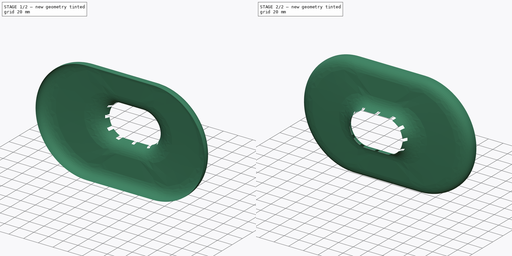
[diagram: build sequence overview — one tinted view per stage of 2, left to right]
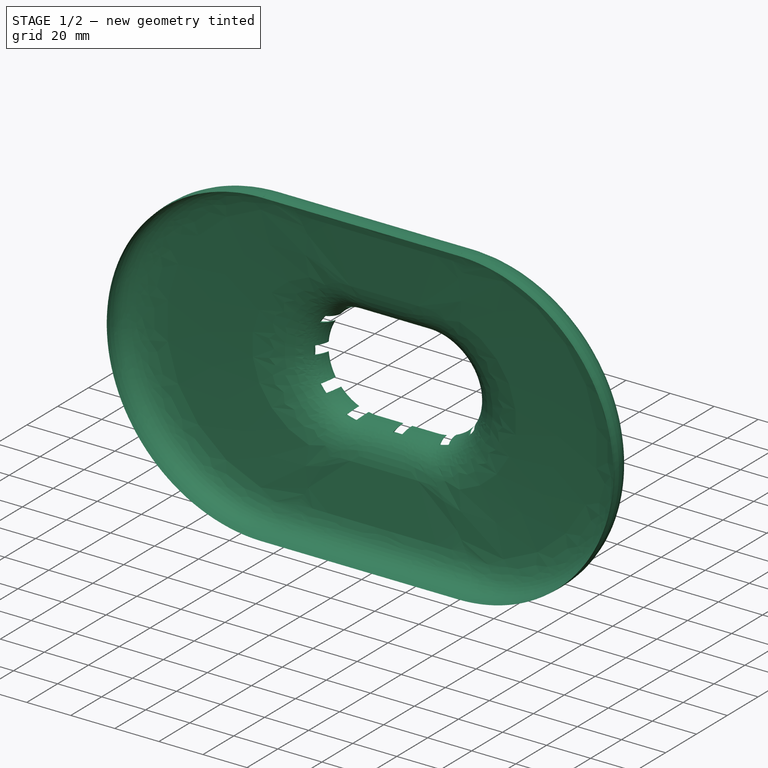
[diagram: stage 1 of 2 — iso view after this stage's code; geometry added in this stage tinted green]
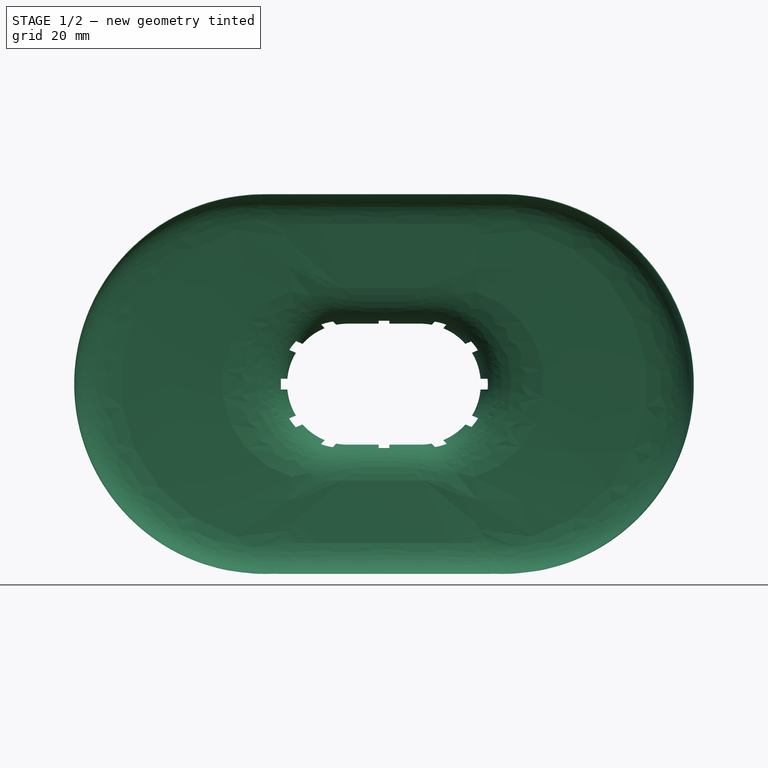
[diagram: stage 1 of 2 — front view after this stage's code; geometry added in this stage tinted green]
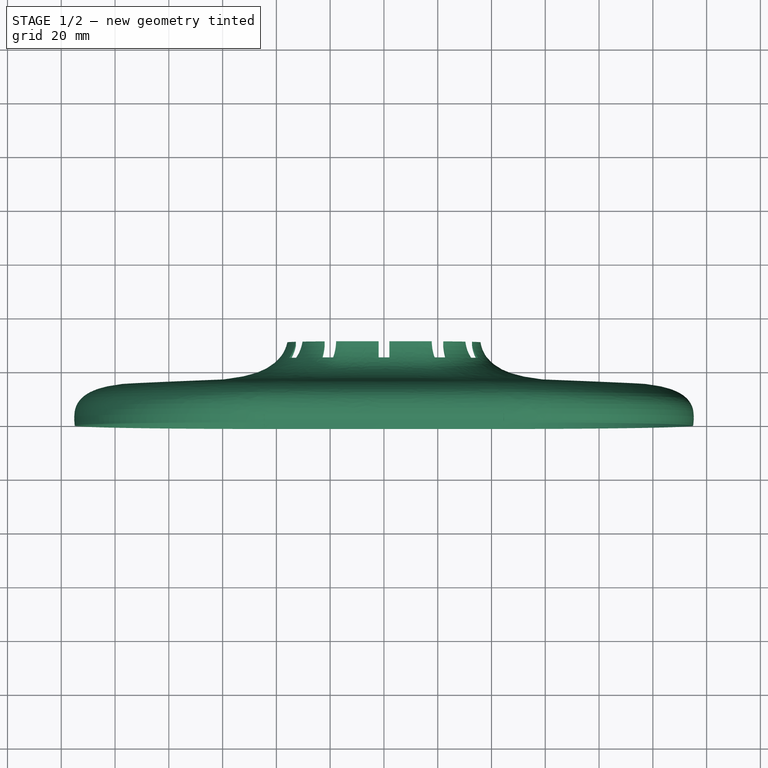
[diagram: stage 1 of 2 — top view after this stage's code; geometry added in this stage tinted green]
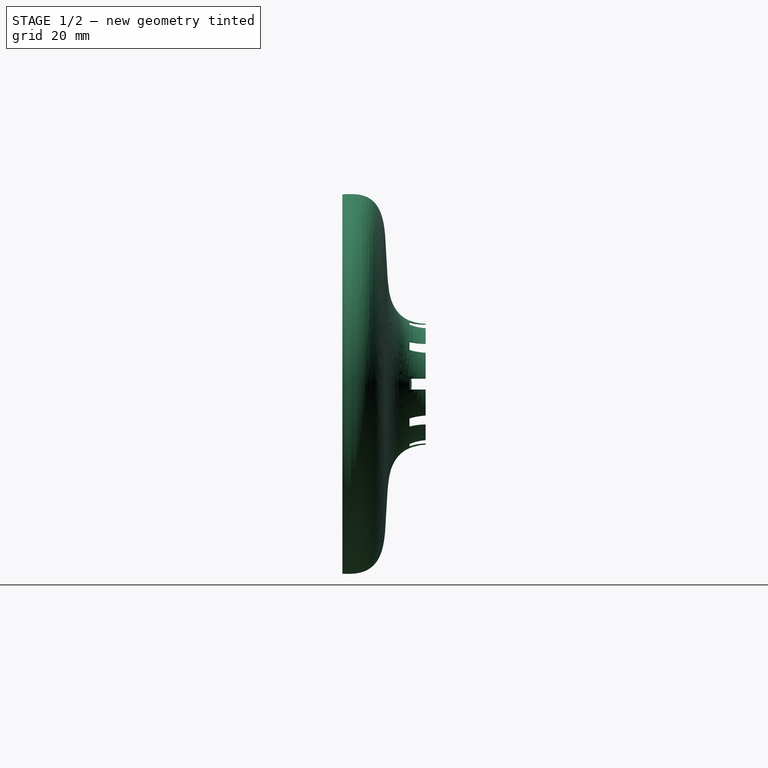
[diagram: stage 1 of 2 — right view after this stage's code; geometry added in this stage tinted green]
FCSTD DOCUMENT  (FreeCAD 0.19R24291 (Git))
Label: lips02
License: All rights reserved
LicenseURL: http://en.wikipedia.org/wiki/All_rights_reserved
objects: Sketcher::SketchObject×6, Part::Extrusion×2, Spreadsheet::Sheet×1, PartDesign::Body×1, Part::Loft×1, Part::Cut×1, Part::Mirroring×1
note: 12 computed .brp shape members not serialized (recipe doc carries the construction recipe); baked Part::Feature solids carry a one-line shape summary decoded from their .brp

FEATURE [Spreadsheet::Sheet] Spreadsheet
  cells = B2=top ; C2=spring; D2=module; B4=horizon; C4(hrz)=230; B5=vertical; C5(vrt)=145; B6=spring place; C6(spl)=30; B7=angle10; C7(an10)=5; B8=angle20; C8(an20)=15; B9=angl30; C9(an30)=30; B10=angl50; C10(an50)=50; B11=an70; C11(an70)=70; B12=body; C12(body)=15; B13=bottm; C13(btm)=2; B14=paz; C14(paz)=6
FEATURE [Sketcher::SketchObject] Sketch  label="solid"
  FullyConstrained = false
  MapMode = 5
  Placement = pos=(0,0,0) rot=(1,0,0;1.5708rad)
  Support = -> [XZ_Plane]
  expr: Constraints[18] = Spreadsheet.an30
  expr: Constraints[7] = Spreadsheet.spl
  expr: Constraints[13] = Spreadsheet.an10
  expr: Constraints[105] = Spreadsheet.btm
  expr: Constraints[11] = Spreadsheet.hrz
  expr: Constraints[24] = Spreadsheet.an70
  expr: Constraints[57] = Spreadsheet.btm
  expr: Constraints[2] = Spreadsheet.spl
  expr: Constraints[6] = Spreadsheet.vrt
  expr: Constraints[21] = Spreadsheet.an50
  expr: Constraints[16] = Spreadsheet.an20
  expr: Constraints[58] = Spreadsheet.spl
  expr: Constraints[15] = Spreadsheet.spl
  expr: Constraints[20] = Spreadsheet.spl
  sketch-geometry (48):
    g0: LineSegment StartX=-115 StartY=15 StartZ=0 EndX=-115 EndY=-15 EndZ=0
    g1: LineSegment StartX=115 StartY=15 StartZ=0 EndX=115 EndY=-15 EndZ=0
    g2: LineSegment StartX=-15 StartY=72.5 StartZ=0 EndX=15 EndY=72.5 EndZ=0
    g3: LineSegment StartX=-15 StartY=-72.5 StartZ=0 EndX=15 EndY=-72.5 EndZ=0
    g4: LineSegment StartX=15 StartY=72.5 StartZ=0 EndX=46.6098 EndY=69.7345 EndZ=0
    g5: LineSegment StartX=46.6098 StartY=69.7345 StartZ=0 EndX=75.5875 EndY=61.9699 EndZ=0
    g6: LineSegment StartX=75.5875 StartY=61.9699 StartZ=0 EndX=90.0175 EndY=53.6388 EndZ=0
    g7: LineSegment StartX=90.0175 StartY=53.6388 StartZ=0 EndX=109.301 EndY=30.6574 EndZ=0
    g8: LineSegment StartX=109.301 StartY=30.6574 StartZ=0 EndX=115 EndY=15 EndZ=0
    g9: LineSegment StartX=-15 StartY=72.5 StartZ=0 EndX=-46.6098 EndY=69.7345 EndZ=0
    g10: LineSegment StartX=-46.6098 StartY=69.7345 StartZ=0 EndX=-75.5875 EndY=61.9699 EndZ=0
    g11: LineSegment StartX=-75.5875 StartY=61.9699 StartZ=0 EndX=-90.0175 EndY=53.6388 EndZ=0
    g12: LineSegment StartX=-90.0175 StartY=53.6388 StartZ=0 EndX=-109.301 EndY=30.6574 EndZ=0
    g13: LineSegment StartX=-109.301 StartY=30.6574 StartZ=0 EndX=-115 EndY=15 EndZ=0
    g14: LineSegment StartX=-115 StartY=-15 StartZ=0 EndX=-109.301 EndY=-30.6574 EndZ=0
    g15: LineSegment StartX=-109.301 StartY=-30.6574 StartZ=0 EndX=-90.0175 EndY=-53.6388 EndZ=0
    g16: LineSegment StartX=-90.0175 StartY=-53.6388 StartZ=0 EndX=-75.5875 EndY=-61.9699 EndZ=0
    g17: LineSegment StartX=-75.5875 StartY=-61.9699 StartZ=0 EndX=-46.6098 EndY=-69.7345 EndZ=0
    g18: LineSegment StartX=-46.6098 StartY=-69.7345 StartZ=0 EndX=-15 EndY=-72.5 EndZ=0
    g19: LineSegment StartX=15 StartY=-72.5 StartZ=0 EndX=46.6098 EndY=-69.7345 EndZ=0
    g20: LineSegment StartX=46.6098 StartY=-69.7345 StartZ=0 EndX=75.5875 EndY=-61.9699 EndZ=0
    g21: LineSegment StartX=75.5875 StartY=-61.9699 StartZ=0 EndX=90.0175 EndY=-53.6388 EndZ=0
    g22: LineSegment StartX=90.0175 StartY=-53.6388 StartZ=0 EndX=109.301 EndY=-30.6574 EndZ=0
    g23: LineSegment StartX=109.301 StartY=-30.6574 StartZ=0 EndX=115 EndY=-15 EndZ=0
    g24: LineSegment StartX=-15 StartY=70.5 StartZ=0 EndX=15 EndY=70.5 EndZ=0
    g25: LineSegment StartX=-15 StartY=70.5 StartZ=0 EndX=-46.4214 EndY=67.751 EndZ=0
    g26: LineSegment StartX=-46.4214 StartY=67.751 StartZ=0 EndX=-74.4554 EndY=60.2393 EndZ=0
    g27: LineSegment StartX=-74.4554 StartY=60.2393 StartZ=0 EndX=-87.4996 EndY=52.7082 EndZ=0
    g28: LineSegment StartX=-87.4996 StartY=52.7082 StartZ=0 EndX=-107.378 EndY=29.0181 EndZ=0
    g29: LineSegment StartX=-107.378 StartY=29.0181 StartZ=0 EndX=-112.824 EndY=14.0555 EndZ=0
    g30: LineSegment StartX=-112.824 StartY=14.0555 StartZ=0 EndX=-112.824 EndY=-15.2096 EndZ=0
    g31: LineSegment StartX=15 StartY=70.5 StartZ=0 EndX=45.1475 EndY=67.8624 EndZ=0
    g32: LineSegment StartX=45.1475 StartY=67.8624 StartZ=0 EndX=73.5018 EndY=60.2649 EndZ=0
    g33: LineSegment StartX=73.5018 StartY=60.2649 StartZ=0 EndX=87.4929 EndY=52.1871 EndZ=0
    g34: LineSegment StartX=87.4929 StartY=52.1871 StartZ=0 EndX=107.166 EndY=28.7411 EndZ=0
    g35: LineSegment StartX=107.166 StartY=28.7411 StartZ=0 EndX=112.425 EndY=14.2934 EndZ=0
    g36: LineSegment StartX=112.425 StartY=14.2934 StartZ=0 EndX=112.425 EndY=-15.1293 EndZ=0
    g37: LineSegment StartX=112.425 StartY=-15.1293 StartZ=0 EndX=107.269 EndY=-29.2953 EndZ=0
    g38: LineSegment StartX=107.269 StartY=-29.2953 StartZ=0 EndX=87.141 EndY=-53.2828 EndZ=0
    g39: LineSegment StartX=87.141 StartY=-53.2828 StartZ=0 EndX=75.2863 EndY=-60.1272 EndZ=0
    g40: LineSegment StartX=75.2863 StartY=-60.1272 StartZ=0 EndX=46.7497 EndY=-67.7735 EndZ=0
    g41: LineSegment StartX=46.7497 StartY=-67.7735 StartZ=0 EndX=15.5585 EndY=-70.5024 EndZ=0
    g42: LineSegment StartX=15.5585 StartY=-70.5024 StartZ=0 EndX=-14.9018 EndY=-70.5024 EndZ=0
    g43: LineSegment StartX=-14.9018 StartY=-70.5024 StartZ=0 EndX=-45.3109 EndY=-67.842 EndZ=0
    g44: LineSegment StartX=-45.3109 StartY=-67.842 StartZ=0 EndX=-73.8953 EndY=-60.1828 EndZ=0
    g45: LineSegment StartX=-73.8953 StartY=-60.1828 StartZ=0 EndX=-87.3183 EndY=-52.433 EndZ=0
    g46: LineSegment StartX=-87.3183 StartY=-52.433 StartZ=0 EndX=-106.756 EndY=-29.2685 EndZ=0
    g47: LineSegment StartX=-106.756 StartY=-29.2685 StartZ=0 EndX=-112.824 EndY=-15.2096 EndZ=0
  constraints (106):
    c: Vertical(g0)
    c: Horizontal(g3)
    c: DistanceX(g2,g2) = 30
    c: Symmetric(g2,g2,g-2)
    c: Equal(g3,g2)
    c: Symmetric(g2,g3,g-1)
    c: Distance(g3,g2) = 145
    c: DistanceY(g1,g1) = 30
    c: Equal(g1,g0)
    c: Symmetric(g1,g1,g-1)
    c: Symmetric(g1,g0,g-1)
    c: Distance(g1,g0) = 230
    c: Coincident(g4,g2)
    c: Angle(g4,g-1) = 0.0872665
    c: Coincident(g5,g4)
    c: Distance(g4,g5) = 30
    c: Angle(g5,g-1) = 0.261799
    c: Coincident(g6,g5)
    c: Angle(g6,g-1) = 0.523599
    c: Coincident(g7,g6)
    c: Distance(g6,g7) = 30
    c: Angle(g7,g-1) = 0.872665
    c: Coincident(g8,g7)
    c: Coincident(g8,g1)
    c: Angle(g8,g-1) = 1.22173
    c: Equal(g6,g8)
    c: Coincident(g9,g2)
    c: Symmetric(g9,g4,g-2)
    c: Coincident(g10,g9)
    c: Symmetric(g10,g5,g-2)
    c: Coincident(g11,g10)
    c: Symmetric(g11,g6,g-2)
    c: Coincident(g12,g11)
    c: Symmetric(g12,g7,g-2)
    c: Coincident(g13,g12)
    c: Coincident(g13,g0)
    c: Coincident(g14,g0)
    c: Coincident(g15,g14)
    c: Coincident(g16,g15)
    c: Coincident(g17,g16)
    c: Coincident(g18,g17)
    c: Coincident(g18,g3)
    c: Symmetric(g14,g7,g-1)
    c: Symmetric(g15,g6,g-1)
    c: Symmetric(g16,g5,g-1)
    c: Symmetric(g17,g4,g-1)
    c: Coincident(g19,g3)
    c: Coincident(g20,g19)
    c: Coincident(g21,g20)
    c: Coincident(g22,g21)
    c: Coincident(g23,g22)
    c: Coincident(g23,g1)
    c: Symmetric(g19,g4,g-1)
    c: Symmetric(g20,g5,g-1)
    c: Symmetric(g21,g6,g-1)
    c: Symmetric(g22,g7,g-1)
    c: Symmetric(g24,g24,g-2)
    c: Distance(g24,g2) = 2
    c: DistanceX(g24,g24) = 30
    c: Coincident(g25,g24)
    c: Parallel(g9,g25)
    c: Coincident(g26,g25)
    c: Parallel(g10,g26)
    c: Coincident(g27,g26)
    c: Parallel(g11,g27)
    c: Coincident(g28,g27)
    c: Parallel(g12,g28)
    c: Coincident(g29,g28)
    c: Parallel(g13,g29)
    c: Coincident(g30,g29)
    c: Parallel(g0,g30)
    c: Coincident(g31,g24)
    c: Parallel(g4,g31)
    c: Coincident(g32,g31)
    c: Parallel(g5,g32)
    c: Coincident(g33,g32)
    c: Parallel(g6,g33)
    c: Coincident(g34,g33)
    c: Parallel(g7,g34)
    c: Coincident(g35,g34)
    c: Parallel(g8,g35)
    c: Coincident(g36,g35)
    c: Vertical(g36)
    c: Coincident(g37,g36)
    c: Parallel(g23,g37)
    c: Coincident(g38,g37)
    c: Parallel(g22,g38)
    c: Coincident(g39,g38)
    c: Parallel(g21,g39)
    c: Coincident(g40,g39)
    c: Parallel(g20,g40)
    c: Coincident(g41,g40)
    c: Parallel(g19,g41)
    c: Coincident(g42,g41)
    c: Horizontal(g42)
    c: Coincident(g43,g42)
    c: Parallel(g18,g43)
    c: Coincident(g44,g43)
    c: Parallel(g17,g44)
    c: Coincident(g45,g44)
    c: Parallel(g16,g45)
    c: Coincident(g46,g45)
    c: Parallel(g15,g46)
    c: Coincident(g47,g46)
    c: Coincident(g47,g30)
    c: Distance(g3,g42) = 2
FEATURE [PartDesign::Body] Body
  Group = -> [Sketch]
  Origin = -> Origin
FEATURE [Sketcher::SketchObject] Sketch001  label="ribbon"
  ExternalGeometry = -> [Sketch]
  FullyConstrained = true
  Placement = pos=(0,0,0) rot=(1,0,0;1.5708rad)
  sketch-geometry (4):
    g0: ArcOfCircle CenterX=-44.4988 CenterY=-0.00120578 CenterZ=0 NormalX=0 NormalY=0 NormalZ=1 AngleXU=0 Radius=70.5012 StartAngle=1.5708 EndAngle=4.71239
    g1: ArcOfCircle CenterX=44.4988 CenterY=-0.00120578 CenterZ=0 NormalX=0 NormalY=0 NormalZ=1 AngleXU=0 Radius=70.5012 StartAngle=4.71239 EndAngle=7.85398
    g2: LineSegment StartX=-44.4988 StartY=-70.5024 StartZ=0 EndX=44.4988 EndY=-70.5024 EndZ=0
    g3: LineSegment StartX=-44.4988 StartY=70.5 StartZ=0 EndX=44.4988 EndY=70.5 EndZ=0
  constraints (8):
    c: Tangent(g0,g3) = 1.5708
    c: Tangent(g0,g2) = -1.5708
    c: Tangent(g2,g1) = -1.5708
    c: Tangent(g3,g1) = 1.5708
    c: Tangent(g0,g-3)
    c: Tangent(g1,g-4)
    c: Tangent(g3,g-5)
    c: Tangent(g2,g-6)
FEATURE [Sketcher::SketchObject] Sketch002  label="hand"
  FullyConstrained = false
  Placement = pos=(0,30,0) rot=(1,0,0;1.5708rad)
  sketch-geometry (6):
    g0: ArcOfCircle CenterX=-13.5003 CenterY=-9e-16 CenterZ=0 NormalX=0 NormalY=0 NormalZ=1 AngleXU=0 Radius=22.5 StartAngle=1.5708 EndAngle=4.71239
    g1: ArcOfCircle CenterX=13.5003 CenterY=9e-16 CenterZ=0 NormalX=0 NormalY=0 NormalZ=1 AngleXU=0 Radius=22.5 StartAngle=4.71239 EndAngle=7.85398
    g2: LineSegment StartX=-13.5003 StartY=-22.5 StartZ=0 EndX=13.5003 EndY=-22.5 EndZ=0
    g3: LineSegment StartX=-13.5003 StartY=22.5 StartZ=0 EndX=13.5003 EndY=22.5 EndZ=0
    g4: GeomPoint X=-35.9996 Y=0.178758 Z=0
    g5: GeomPoint X=35.9995 Y=-0.190575 Z=0
  constraints (11):
    c: Tangent(g0,g3) = 1.5708
    c: Tangent(g0,g2) = -1.5708
    c: Tangent(g2,g1) = -1.5708
    c: Tangent(g3,g1) = 1.5708
    c: Horizontal(g2)
    c: Equal(g0,g1)
    c: Symmetric(g0,g1,g-1)
    c: Distance(g1,g1) = 45
    c: PointOnObject(g4,g0)
    c: PointOnObject(g5,g1)
    c: Distance(g4,g5) = 72
FEATURE [Sketcher::SketchObject] Sketch003
  ExternalGeometry = -> [Sketch001]
  FullyConstrained = false
  Placement = pos=(0,5,0) rot=(1,0,0;1.5708rad)
  sketch-geometry (4):
    g0: ArcOfCircle CenterX=-44.4988 CenterY=0.135698 CenterZ=0 NormalX=0 NormalY=0 NormalZ=1 AngleXU=0 Radius=70.3643 StartAngle=1.5708 EndAngle=4.71239
    g1: ArcOfCircle CenterX=44.5809 CenterY=0.135698 CenterZ=0 NormalX=0 NormalY=0 NormalZ=1 AngleXU=0 Radius=70.3643 StartAngle=4.71239 EndAngle=7.85398
    g2: LineSegment StartX=-44.4988 StartY=-70.2286 StartZ=0 EndX=44.5809 EndY=-70.2286 EndZ=0
    g3: LineSegment StartX=-44.4988 StartY=70.5 StartZ=0 EndX=44.5809 EndY=70.5 EndZ=0
  constraints (7):
    c: Tangent(g0,g3) = 1.5708
    c: Tangent(g0,g2) = -1.5708
    c: Tangent(g2,g1) = -1.5708
    c: Tangent(g3,g1) = 1.5708
    c: Horizontal(g2)
    c: Equal(g0,g1)
    c: Coincident(g0,g-3)
FEATURE [Sketcher::SketchObject] Sketch004
  FullyConstrained = false
  Placement = pos=(0,24,0) rot=(1,0,0;1.5708rad)
  sketch-geometry (4):
    g0: ArcOfCircle CenterX=-15.3058 CenterY=-0.077402 CenterZ=0 NormalX=0 NormalY=0 NormalZ=1 AngleXU=0 Radius=23.6631 StartAngle=1.5708 EndAngle=4.71239
    g1: ArcOfCircle CenterX=14.9791 CenterY=-0.077402 CenterZ=0 NormalX=0 NormalY=0 NormalZ=1 AngleXU=0 Radius=23.6631 StartAngle=4.71239 EndAngle=7.85398
    g2: LineSegment StartX=-15.3058 StartY=-23.7405 StartZ=0 EndX=14.9791 EndY=-23.7405 EndZ=0
    g3: LineSegment StartX=-15.3058 StartY=23.5857 StartZ=0 EndX=14.9791 EndY=23.5857 EndZ=0
  constraints (6):
    c: Tangent(g0,g3) = 1.5708
    c: Tangent(g0,g2) = -1.5708
    c: Tangent(g2,g1) = -1.5708
    c: Tangent(g3,g1) = 1.5708
    c: Horizontal(g2)
    c: Equal(g0,g1)
FEATURE [Part::Loft] Loft
  Closed = false
  MaxDegree = 5
  Ruled = false
  Sections = -> [Sketch001,Sketch003,Sketch004,Sketch002]
  Solid = false
FEATURE [Sketcher::SketchObject] Sketch005  label="sockt"
  ExternalGeometry = -> [Sketch,Loft]
  FullyConstrained = false
  Placement = pos=(0,30,0) rot=(1,0,0;1.5708rad)
  expr: Constraints[49] = Spreadsheet.paz
  expr: Constraints[50] = Spreadsheet.paz
  expr: Constraints[51] = Spreadsheet.paz
  expr: Constraints[48] = Spreadsheet.paz
  expr: Constraints[52] = Spreadsheet.paz
  expr: Constraints[53] = Spreadsheet.paz
  sketch-geometry (48):
    g0: LineSegment StartX=-2 StartY=25.7229 StartZ=0 EndX=2 EndY=25.7229 EndZ=0
    g1: LineSegment StartX=2 StartY=25.7229 StartZ=0 EndX=2 EndY=19.7229 EndZ=0
    g2: LineSegment StartX=2 StartY=19.7229 StartZ=0 EndX=-2 EndY=19.7229 EndZ=0
    g3: LineSegment StartX=-2 StartY=19.7229 StartZ=0 EndX=-2 EndY=25.7229 EndZ=0
    g4: LineSegment StartX=-2 StartY=-20.8369 StartZ=0 EndX=2 EndY=-20.8369 EndZ=0
    g5: LineSegment StartX=2 StartY=-20.8369 StartZ=0 EndX=2 EndY=-26.8369 EndZ=0
    g6: LineSegment StartX=2 StartY=-26.8369 StartZ=0 EndX=-2 EndY=-26.8369 EndZ=0
    g7: LineSegment StartX=-2 StartY=-26.8369 StartZ=0 EndX=-2 EndY=-20.8369 EndZ=0
    g8: LineSegment StartX=-38.3458 StartY=2 StartZ=0 EndX=-32.3458 EndY=2 EndZ=0
    g9: LineSegment StartX=-32.3458 StartY=2 StartZ=0 EndX=-32.3458 EndY=-2 EndZ=0
    g10: LineSegment StartX=-32.3458 StartY=-2 StartZ=0 EndX=-38.3458 EndY=-2 EndZ=0
    g11: LineSegment StartX=-38.3458 StartY=-2 StartZ=0 EndX=-38.3458 EndY=2 EndZ=0
    g12: LineSegment StartX=33.2184 StartY=2 StartZ=0 EndX=39.2184 EndY=2 EndZ=0
    g13: LineSegment StartX=39.2184 StartY=2 StartZ=0 EndX=39.2184 EndY=-2 EndZ=0
    g14: LineSegment StartX=39.2184 StartY=-2 StartZ=0 EndX=33.2184 EndY=-2 EndZ=0
    g15: LineSegment StartX=33.2184 StartY=-2 StartZ=0 EndX=33.2184 EndY=2 EndZ=0
    g16: LineSegment StartX=29.9618 StartY=10.5 StartZ=0 EndX=28.4037 EndY=14.1841 EndZ=0
    g17: LineSegment StartX=28.4037 StartY=14.1841 StartZ=0 EndX=33.9299 EndY=16.5212 EndZ=0
    g18: LineSegment StartX=33.9299 StartY=16.5212 StartZ=0 EndX=35.4879 EndY=12.8371 EndZ=0
    g19: LineSegment StartX=35.4879 StartY=12.8371 StartZ=0 EndX=29.9618 EndY=10.5 EndZ=0
    g20: LineSegment StartX=16.4966 StartY=20.7206 StartZ=0 EndX=19.4289 EndY=18 EndZ=0
    g21: LineSegment StartX=19.4289 StartY=18 StartZ=0 EndX=23.5098 EndY=22.3984 EndZ=0
    g22: LineSegment StartX=23.5098 StartY=22.3984 StartZ=0 EndX=20.5776 EndY=25.119 EndZ=0
    g23: LineSegment StartX=20.5776 StartY=25.119 StartZ=0 EndX=16.4966 EndY=20.7206 EndZ=0
    g24: LineSegment StartX=29.9618 StartY=-10.5 StartZ=0 EndX=35.4879 EndY=-12.8371 EndZ=0
    g25: LineSegment StartX=35.4879 StartY=-12.8371 StartZ=0 EndX=33.9299 EndY=-16.5212 EndZ=0
    g26: LineSegment StartX=33.9299 StartY=-16.5212 StartZ=0 EndX=28.4037 EndY=-14.1841 EndZ=0
    g27: LineSegment StartX=28.4037 StartY=-14.1841 StartZ=0 EndX=29.9618 EndY=-10.5 EndZ=0
    g28: LineSegment StartX=19.4289 StartY=-18 StartZ=0 EndX=23.5098 EndY=-22.3984 EndZ=0
    g29: LineSegment StartX=23.5098 StartY=-22.3984 StartZ=0 EndX=20.5776 EndY=-25.119 EndZ=0
    g30: LineSegment StartX=20.5776 StartY=-25.119 StartZ=0 EndX=16.4966 EndY=-20.7206 EndZ=0
    g31: LineSegment StartX=16.4966 StartY=-20.7206 StartZ=0 EndX=19.4289 EndY=-18 EndZ=0
    g32: LineSegment StartX=-20.5776 StartY=25.119 StartZ=0 EndX=-16.4966 EndY=20.7206 EndZ=0
    g33: LineSegment StartX=-16.4966 StartY=20.7206 StartZ=0 EndX=-19.4289 EndY=18 EndZ=0
    g34: LineSegment StartX=-19.4289 StartY=18 StartZ=0 EndX=-23.5098 EndY=22.3984 EndZ=0
    g35: LineSegment StartX=-23.5098 StartY=22.3984 StartZ=0 EndX=-20.5776 EndY=25.119 EndZ=0
    g36: LineSegment StartX=-33.9299 StartY=16.5212 StartZ=0 EndX=-28.4037 EndY=14.1841 EndZ=0
    g37: LineSegment StartX=-28.4037 StartY=14.1841 StartZ=0 EndX=-29.9618 EndY=10.5 EndZ=0
    g38: LineSegment StartX=-29.9618 StartY=10.5 StartZ=0 EndX=-35.4879 EndY=12.8371 EndZ=0
    g39: LineSegment StartX=-35.4879 StartY=12.8371 StartZ=0 EndX=-33.9299 EndY=16.5212 EndZ=0
    g40: LineSegment StartX=-29.9618 StartY=-10.5 StartZ=0 EndX=-35.4879 EndY=-12.8371 EndZ=0
    g41: LineSegment StartX=-35.4879 StartY=-12.8371 StartZ=0 EndX=-33.9299 EndY=-16.5212 EndZ=0
    g42: LineSegment StartX=-33.9299 StartY=-16.5212 StartZ=0 EndX=-28.4037 EndY=-14.1841 EndZ=0
    g43: LineSegment StartX=-28.4037 StartY=-14.1841 StartZ=0 EndX=-29.9618 EndY=-10.5 EndZ=0
    g44: LineSegment StartX=-19.4289 StartY=-18 StartZ=0 EndX=-23.5098 EndY=-22.3984 EndZ=0
    g45: LineSegment StartX=-23.5098 StartY=-22.3984 StartZ=0 EndX=-20.5776 EndY=-25.119 EndZ=0
    g46: LineSegment StartX=-20.5776 StartY=-25.119 StartZ=0 EndX=-16.4966 EndY=-20.7206 EndZ=0
    g47: LineSegment StartX=-16.4966 StartY=-20.7206 StartZ=0 EndX=-19.4289 EndY=-18 EndZ=0
  constraints (104):
    c: Coincident(g0,g1)
    c: Coincident(g1,g2)
    c: Coincident(g2,g3)
    c: Coincident(g3,g0)
    c: Horizontal(g0)
    c: Vertical(g1)
    c: Vertical(g3)
    c: Coincident(g4,g5)
    c: Coincident(g5,g6)
    c: Coincident(g6,g7)
    c: Coincident(g7,g4)
    c: Horizontal(g6)
    c: Vertical(g5)
    c: Vertical(g7)
    c: Coincident(g8,g9)
    c: Coincident(g9,g10)
    c: Coincident(g10,g11)
    c: Coincident(g11,g8)
    c: Horizontal(g8)
    c: Horizontal(g10)
    c: Vertical(g11)
    c: Coincident(g12,g13)
    c: Coincident(g13,g14)
    c: Coincident(g14,g15)
    c: Coincident(g15,g12)
    c: Horizontal(g12)
    c: Horizontal(g14)
    c: Vertical(g15)
    c: DistanceX(g2,g2) = 4
    c: Symmetric(g2,g1,g-2)
    c: DistanceX(g4,g4) = 4
    c: Symmetric(g4,g4,g-2)
    c: DistanceY(g9,g9) = 4
    c: Symmetric(g9,g8,g-1)
    c: DistanceY(g15,g15) = 4
    c: Symmetric(g13,g12,g-1)
    c: Coincident(g16,g17)
    c: Coincident(g17,g18)
    c: Coincident(g18,g19)
    c: Coincident(g19,g16)
    c: Coincident(g20,g21)
    c: Coincident(g21,g22)
    c: Coincident(g22,g23)
    c: Coincident(g23,g20)
    c: Distance(g20,g20) = 4
    c: Parallel(g20,g22)
    c: Parallel(g16,g18)
    c: Distance(g16,g16) = 4
    c: DistanceY(g3,g3) = 6
    c: Distance(g22,g20) = 6
    c: Distance(g17,g16) = 6
    c: DistanceX(g14,g14) = 6
    c: DistanceX(g8,g8) = 6
    c: DistanceY(g5,g5) = 6
    c: Distance(g16,g-1) = 10.5
    c: Distance(g20,g-1) = 18
    c: Coincident(g24,g25)
    c: Coincident(g25,g26)
    c: Coincident(g26,g27)
    c: Coincident(g27,g24)
    c: Symmetric(g24,g16,g-1)
    c: Symmetric(g24,g18,g-1)
    c: Symmetric(g16,g26,g-1)
    c: Symmetric(g17,g25,g-1)
    c: Coincident(g28,g29)
    c: Coincident(g29,g30)
    c: Coincident(g30,g31)
    c: Coincident(g31,g28)
    c: Symmetric(g20,g28,g-1)
    c: Symmetric(g21,g28,g-1)
    c: Symmetric(g20,g30,g-1)
    c: Symmetric(g22,g29,g-1)
    c: Coincident(g32,g33)
    c: Coincident(g33,g34)
    c: Coincident(g34,g35)
    c: Coincident(g35,g32)
    c: Coincident(g36,g37)
    c: Coincident(g37,g38)
    c: Coincident(g38,g39)
    c: Coincident(g39,g36)
    c: Symmetric(g20,g32,g-2)
    c: Symmetric(g22,g32,g-2)
    c: Symmetric(g20,g33,g-2)
    c: Symmetric(g21,g34,g-2)
    c: Symmetric(g36,g16,g-2)
    c: Symmetric(g36,g17,g-2)
    c: Symmetric(g16,g37,g-2)
    c: Symmetric(g18,g38,g-2)
    c: Coincident(g40,g41)
    c: Coincident(g41,g42)
    c: Coincident(g42,g43)
    c: Coincident(g43,g40)
    c: Coincident(g44,g45)
    c: Coincident(g45,g46)
    c: Coincident(g46,g47)
    c: Coincident(g47,g44)
    c: Symmetric(g37,g40,g-1)
    c: Symmetric(g36,g42,g-1)
    c: Symmetric(g38,g40,g-1)
    c: Symmetric(g36,g41,g-1)
    c: Symmetric(g33,g44,g-1)
    c: Symmetric(g32,g46,g-1)
    c: Symmetric(g32,g45,g-1)
    c: Symmetric(g34,g44,g-1)
FEATURE [Part::Extrusion] Extrude
  Base = -> Sketch005
  Dir = (0,-1,2e-16)
  DirMode = 2
  FaceMakerClass = Part::FaceMakerBullseye
  LengthFwd = 6
  LengthRev = 0
  Solid = true
  Symmetric = false
FEATURE [Part::Cut] Cut
  Base = -> Loft
  Tool = -> Extrude
FEATURE [Part::Extrusion] Extrusion
  Base = -> Cut
  Dir = (0,-1,0)
  DirMode = 0
  FaceMakerClass = Part::FaceMakerBullseye
  LengthFwd = 0
  LengthRev = 0
  Solid = true
  Symmetric = false
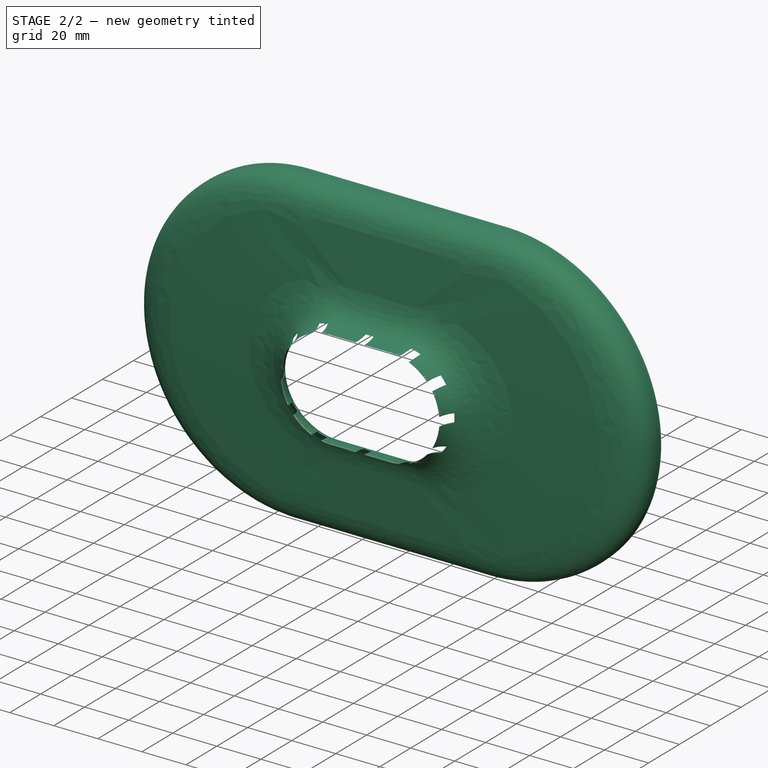
[diagram: stage 2 of 2 — iso view after this stage's code; geometry added in this stage tinted green]
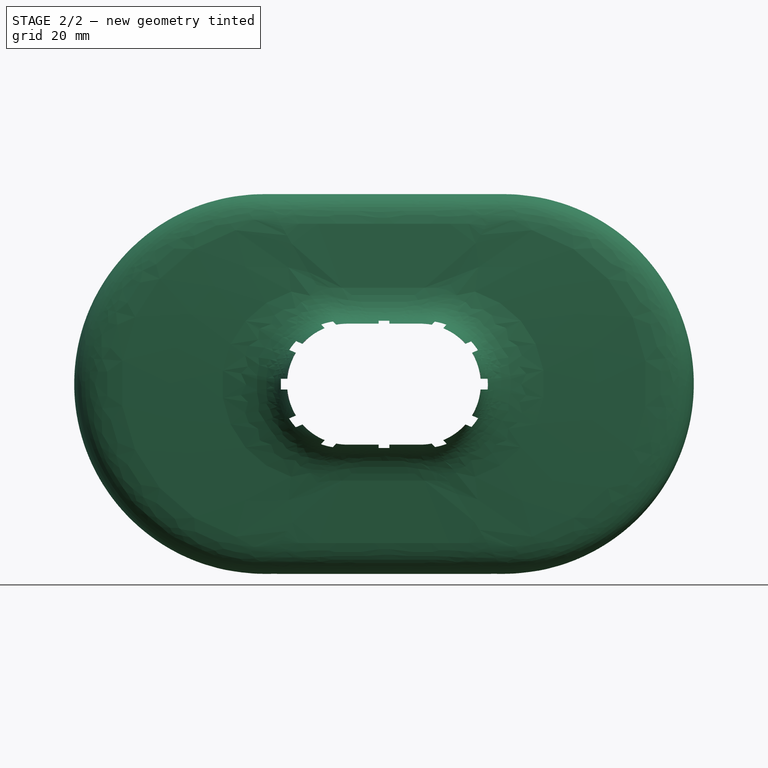
[diagram: stage 2 of 2 — front view after this stage's code; geometry added in this stage tinted green]
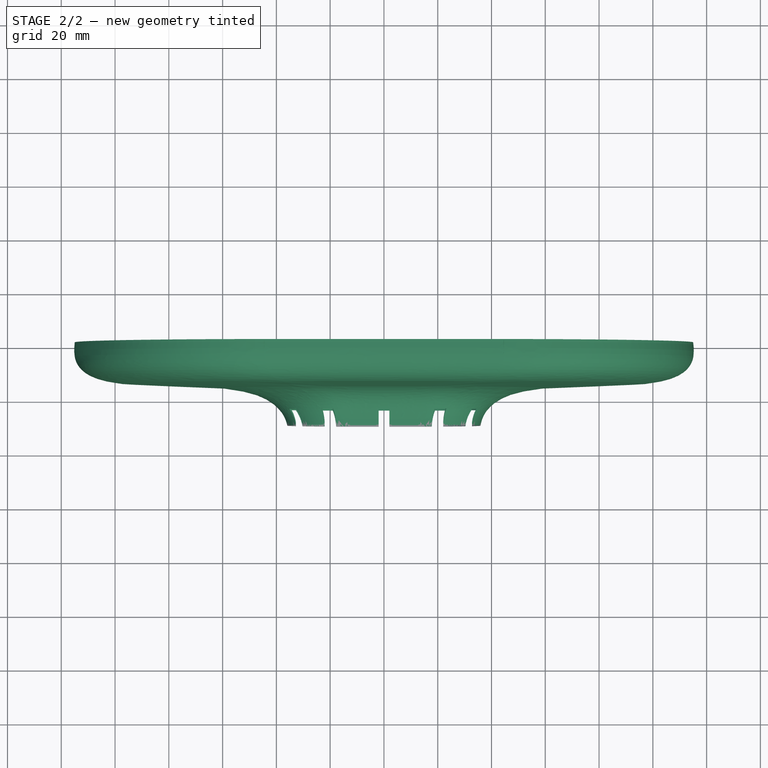
[diagram: stage 2 of 2 — top view after this stage's code; geometry added in this stage tinted green]
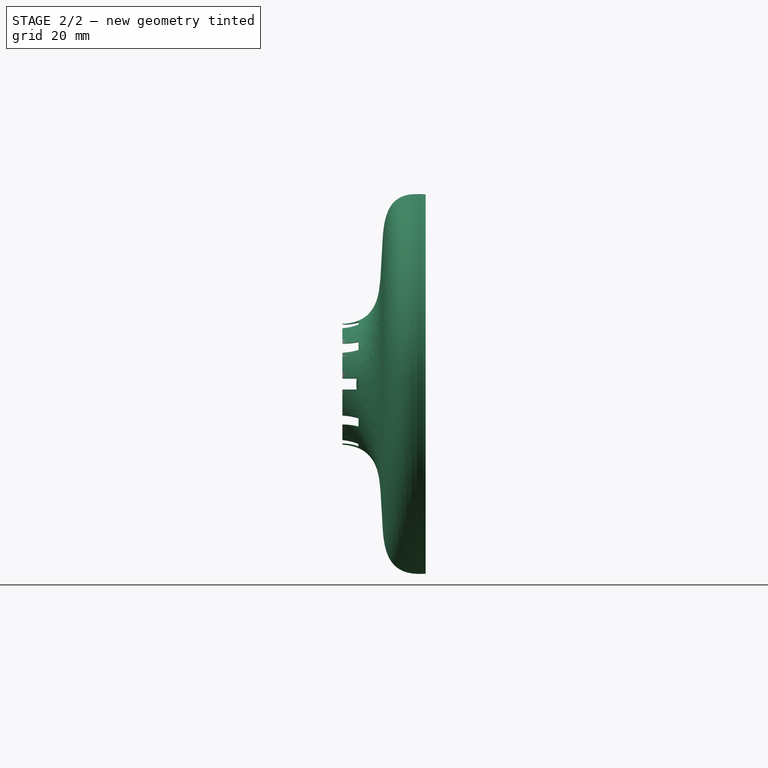
[diagram: stage 2 of 2 — right view after this stage's code; geometry added in this stage tinted green]
FEATURE [Part::Mirroring] Part__Mirroring  label="Extrusion (Mirror #1)"
  Base = (0,30,0)
  Normal = (0,1,0)
  Source = -> Extrusion
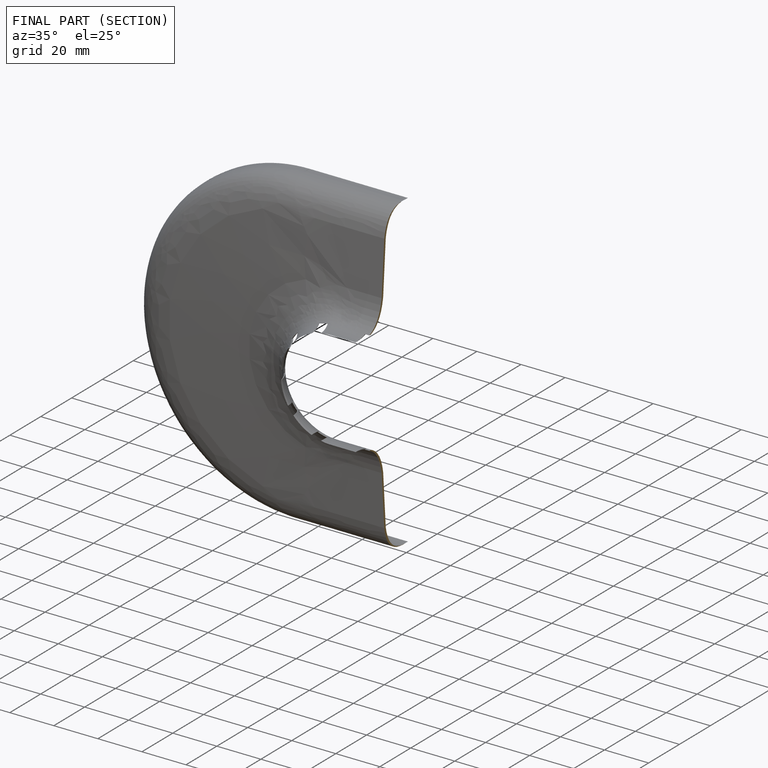
[diagram: finished part — half-section view (interior)]
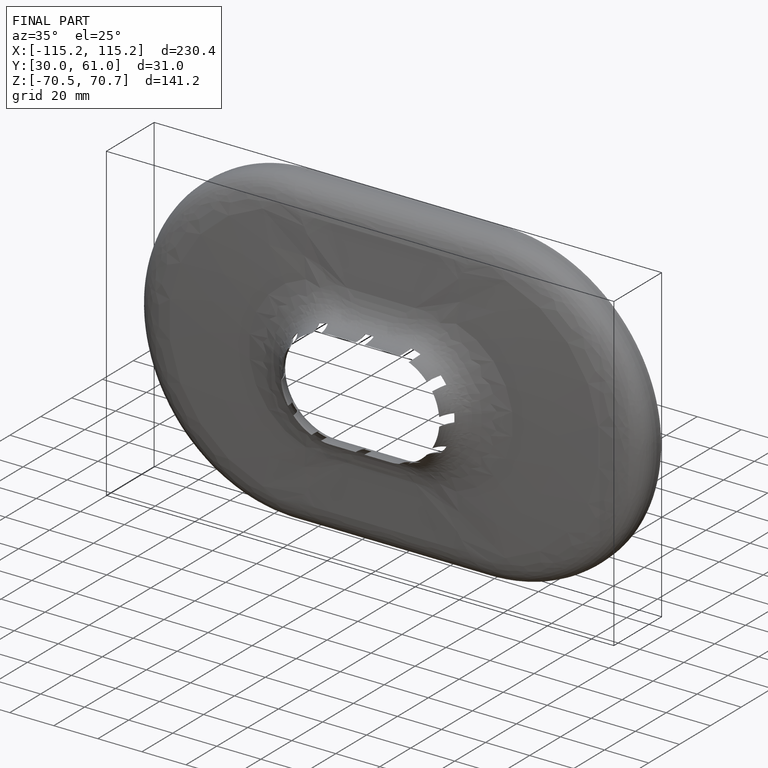
[diagram: finished part — iso view with bounding-box wireframe]
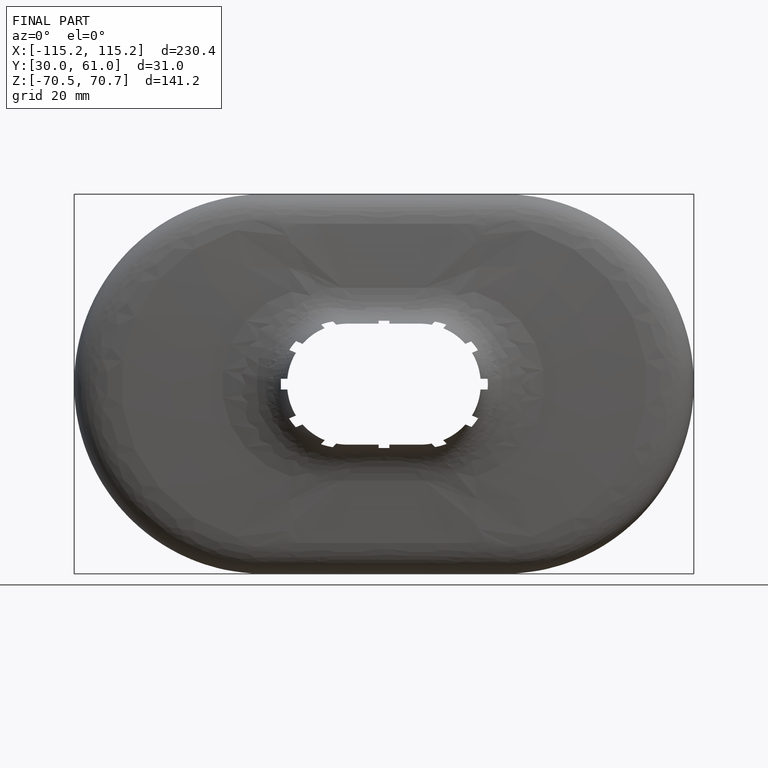
[diagram: finished part — front view with bounding-box wireframe]
